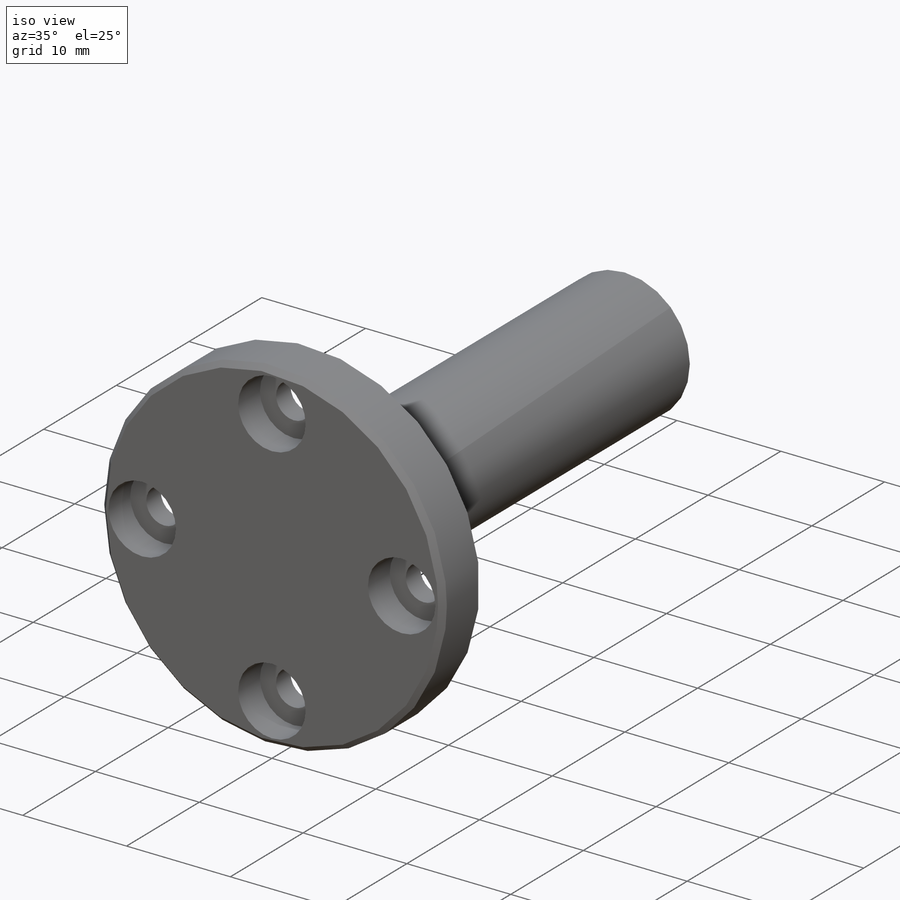
[diagram: iso view]
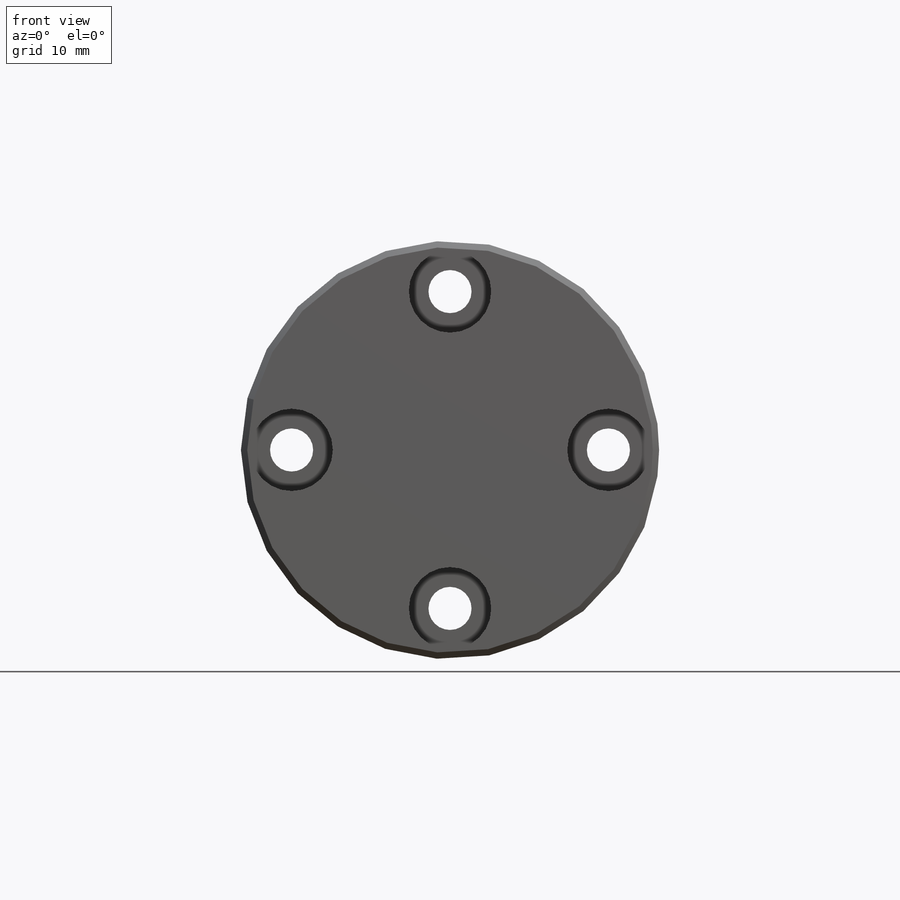
[diagram: front view]
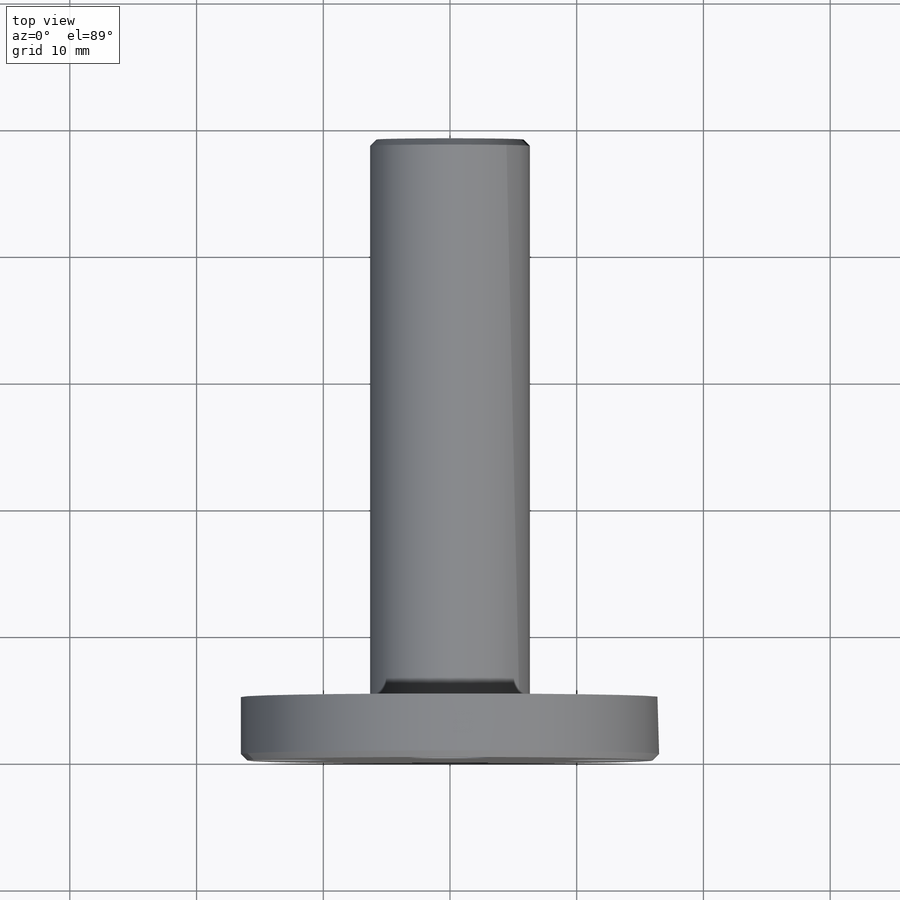
[diagram: top view]
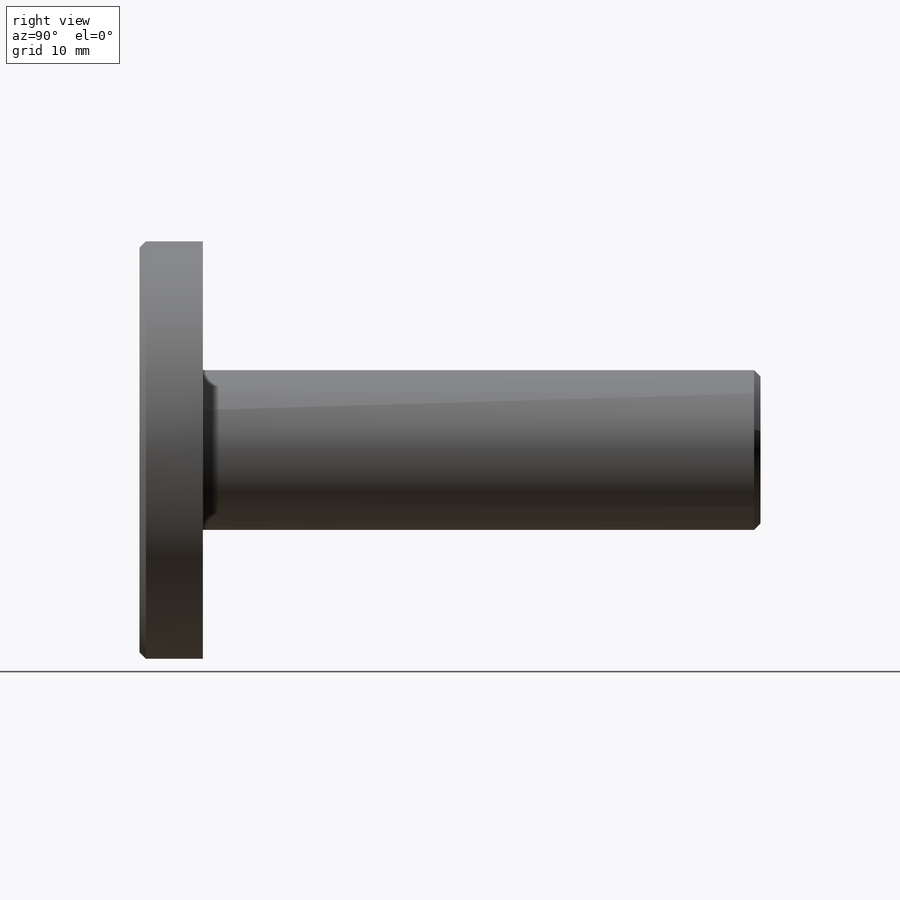
[diagram: right view]
SOLIDWORKS PART (.sldprt)
format: sldprt  version: not decoded by parser v0  size: 270,336 bytes
history: native  units: mm
features: sketch x6, hole x2, material x1, revolve x1, thread x1, chamfer x1 (+11 scaffold rows collapsed)
feature tree (23):
  scaffold x11  (default folders/planes/origin — collapsed)
  material  "3.1355 (EN-AW 2024)"
  sketch  "Эскиз2"  dims[D1=16.5mm D2=5.0mm D3=6.3mm D4=44.0mm D5=49.0mm]
  revolve  "Повернуть1"  Angle=360deg
  sketch  "Эскиз3"  dims[c1.D1=25.0mm c1.D2=25.0mm c2.D2=4.0]
  hole  "Цековка для винта с внутренним шестигранником M31"  [1 undecoded]
  sketch  "Эскиз5"
  sketch  "Эскиз4"  dims[hole-wizard template sketch: 42 standard entries collapsed; hole parameters kept: c12.Глубина сквозного отверстия=49.0mm c12.Диаметр цековки=6.5mm c12.Глубина цековки=3.0mm]
  hole  "Отверстие обработанное метчиком M3x0.51"  [1 undecoded]
  sketch  "Эскиз6"
  sketch  "Эскиз7"  dims[Диаметр сверла=2.5mm Глубина сверла=15.0mm Угол заточки сверла=118.0deg]
  thread  "Отверстие резьбы1"  Diameter=13mm  [1 undecoded]
  chamfer  "Фаска1"  Distance=0.5mm Angle=45deg
decode coverage: 7 of 11 modeling features carry decoded parameters
note: ~ marks probable driven/reference dimensions
note: 3 parameter values undecoded
note: suppression state not decoded; provenance and decode notes live in map.json
